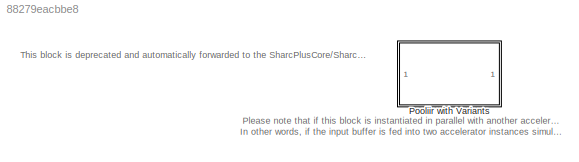
MODEL slx_88279eacbbe8
KIND library
CONFIG AbsTol = auto
CONFIG EnableMultiTasking = off
CONFIG FixedStep = auto
CONFIG MaxStep = auto
CONFIG MinStep = auto
CONFIG RelTol = 1e-3
CONFIG SampleTimeConstraint = Unconstrained
CONFIG SolverName = VariableStepAuto
CONFIG StartTime = 0.0
CONFIG StopTime = 10.0
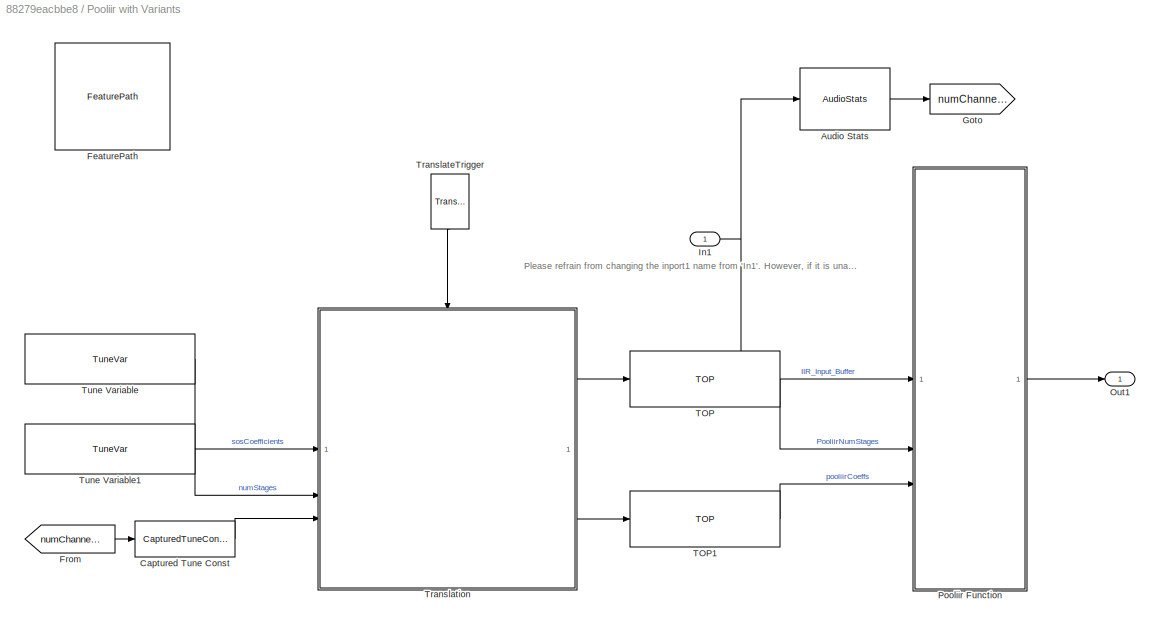
BLOCK [SubSystem] Pooliir with Variants
  Commented = on
BLOCK [Reference] Pooliir with Variants/Audio Stats  REF=AudioStats/AudioStats
  SourceBlock = AudioStats/AudioStats
  SourceProductName = Bose Talaria
  SourceType = Talaria Audio Statistics
BLOCK [Reference] Pooliir with Variants/Captured Tune Const  REF=TuneVar/CapturedTuneConst
  SourceBlock = TuneVar/CapturedTuneConst
  SourceProductName = Bose Talaria
  SourceType = Talaria Captured Constant
BLOCK [Reference] Pooliir with Variants/FeaturePath  REF=FeaturePath/FeaturePath
  SourceBlock = FeaturePath/FeaturePath
  SourceProductName = Bose Talaria
  SourceType = Talaria Feature Path
BLOCK [From] Pooliir with Variants/From
  GotoTag = numChannels
BLOCK [Goto] Pooliir with Variants/Goto
  GotoTag = numChannels
BLOCK [Inport] Pooliir with Variants/In1
BLOCK [Outport] Pooliir with Variants/Out1
  VectorParamsAs1DForOutWhenUnconnected = off
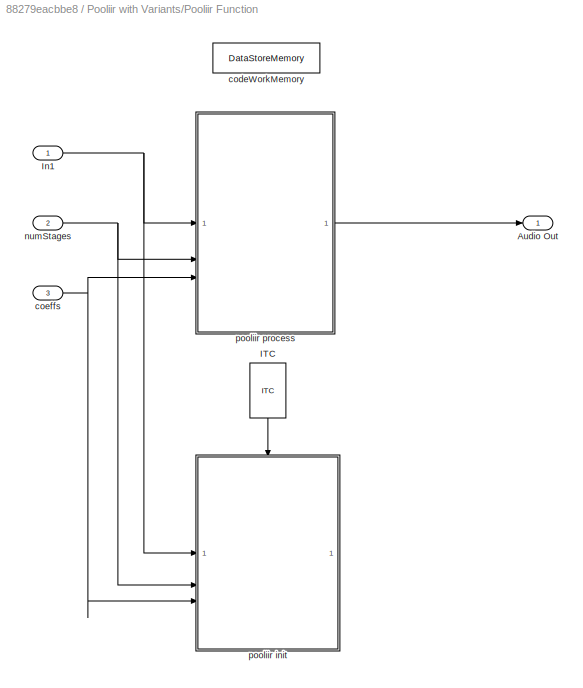
BLOCK [SubSystem] Pooliir with Variants/Pooliir Function
BLOCK [Outport] Pooliir with Variants/Pooliir Function/Audio Out
  VectorParamsAs1DForOutWhenUnconnected = off
BLOCK [Reference] Pooliir with Variants/Pooliir Function/ITC  REF=ITC/ITC
  NameLocation = left
  SourceBlock = ITC/ITC
  SourceProductName = Bose Talaria
  SourceType = Talaria Initialization Trigger Control
BLOCK [Inport] Pooliir with Variants/Pooliir Function/In1
BLOCK [DataStoreMemory] Pooliir with Variants/Pooliir Function/codeWorkMemory
  DataStoreName = codeWorkMemory
  EmbeddedSignalClassName = Blocklib.Signal
  InitialValue = zeros(1,codeWorkMemorySize)
  OutDataTypeStr = single
  ShowAdditionalParam = off
  SignalType = real
  WriteAfterWriteMsg = warning
BLOCK [Inport] Pooliir with Variants/Pooliir Function/coeffs
  Port = 3
BLOCK [Inport] Pooliir with Variants/Pooliir Function/numStages
  Port = 2
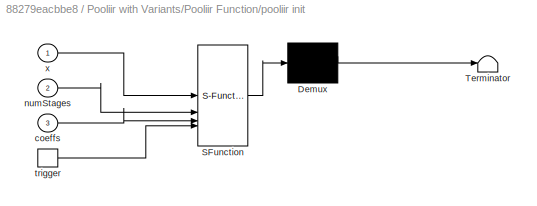
BLOCK [SubSystem] Pooliir with Variants/Pooliir Function/pooliir init
  ErrorFcn = Stateflow.Translate.translate
  PermitHierarchicalResolution = ExplicitOnly
  RTWFcnName = foo
  RTWFcnNameOpts = User specified
  SFBlockType = MATLAB Function
  TreatAsAtomicUnit = on
BLOCK [Demux] Pooliir with Variants/Pooliir Function/pooliir init/ Demux 
  Outputs = 1
BLOCK [S-Function] Pooliir with Variants/Pooliir Function/pooliir init/ SFunction 
  EnableBusSupport = off
  FunctionName = sf_sfun
  Parameters = variantSelect
  PortCounts = [4 1]
  SFcnIsStateOwnerBlock = off
  SFunctionDeploymentMode = off
  Tag = Stateflow S-Function 1
BLOCK [Terminator] Pooliir with Variants/Pooliir Function/pooliir init/ Terminator 
BLOCK [Inport] Pooliir with Variants/Pooliir Function/pooliir init/coeffs
  Port = 3
BLOCK [Inport] Pooliir with Variants/Pooliir Function/pooliir init/numStages
  Port = 2
BLOCK [TriggerPort] Pooliir with Variants/Pooliir Function/pooliir init/trigger
  ShowOutputPort = on
  StatesWhenEnabling = held
  TriggerType = function-call
  VariantControl = (inherit)
BLOCK [Inport] Pooliir with Variants/Pooliir Function/pooliir init/x
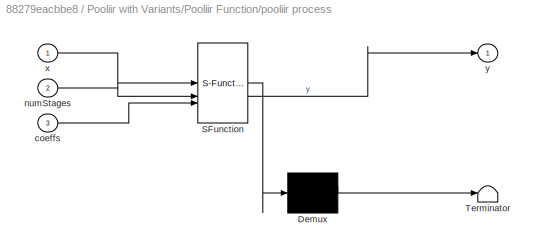
BLOCK [SubSystem] Pooliir with Variants/Pooliir Function/pooliir process
  ErrorFcn = Stateflow.Translate.translate
  PermitHierarchicalResolution = ExplicitOnly
  SFBlockType = MATLAB Function
  TreatAsAtomicUnit = on
BLOCK [Demux] Pooliir with Variants/Pooliir Function/pooliir process/ Demux 
  Outputs = 1
BLOCK [S-Function] Pooliir with Variants/Pooliir Function/pooliir process/ SFunction 
  EnableBusSupport = off
  FunctionName = sf_sfun
  Parameters = variantSelect
  PortCounts = [3 2]
  SFcnIsStateOwnerBlock = off
  SFunctionDeploymentMode = off
  Tag = Stateflow S-Function 2
BLOCK [Terminator] Pooliir with Variants/Pooliir Function/pooliir process/ Terminator 
BLOCK [Inport] Pooliir with Variants/Pooliir Function/pooliir process/coeffs
  Port = 3
BLOCK [Inport] Pooliir with Variants/Pooliir Function/pooliir process/numStages
  Port = 2
BLOCK [Inport] Pooliir with Variants/Pooliir Function/pooliir process/x
BLOCK [Outport] Pooliir with Variants/Pooliir Function/pooliir process/y
  VectorParamsAs1DForOutWhenUnconnected = off
BLOCK [Reference] Pooliir with Variants/TOP  REF=TOP/TOP
  SourceBlock = TOP/TOP
  SourceProductName = Bose Talaria
  SourceType = Talaria Target Overlay Parameter
BLOCK [Reference] Pooliir with Variants/TOP1  REF=TOP/TOP
  SourceBlock = TOP/TOP
  SourceProductName = Bose Talaria
  SourceType = Talaria Target Overlay Parameter
BLOCK [Reference] Pooliir with Variants/TranslateTrigger  REF=TuneVar/TranslateTrigger
  NameLocation = left
  SourceBlock = TuneVar/TranslateTrigger
  SourceProductName = Bose Talaria
  SourceType = Talaria Translate Trigger
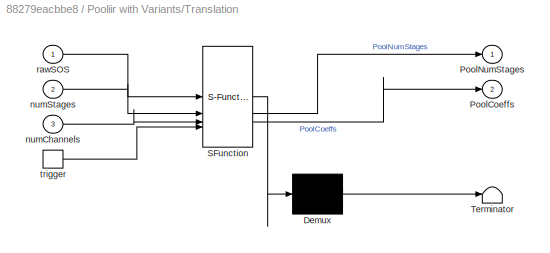
BLOCK [SubSystem] Pooliir with Variants/Translation
  ErrorFcn = Stateflow.Translate.translate
  PermitHierarchicalResolution = ExplicitOnly
  SFBlockType = MATLAB Function
  TreatAsAtomicUnit = on
BLOCK [Demux] Pooliir with Variants/Translation/ Demux 
  Outputs = 1
BLOCK [S-Function] Pooliir with Variants/Translation/ SFunction 
  EnableBusSupport = off
  FunctionName = sf_sfun
  Parameters = maxNumStages,variantSelect
  PortCounts = [4 3]
  SFcnIsStateOwnerBlock = off
  SFunctionDeploymentMode = off
  Tag = Stateflow S-Function 4
BLOCK [Terminator] Pooliir with Variants/Translation/ Terminator 
BLOCK [Outport] Pooliir with Variants/Translation/PoolCoeffs
  Port = 2
  VectorParamsAs1DForOutWhenUnconnected = off
BLOCK [Outport] Pooliir with Variants/Translation/PoolNumStages
  VectorParamsAs1DForOutWhenUnconnected = off
BLOCK [Inport] Pooliir with Variants/Translation/numChannels
  Port = 3
BLOCK [Inport] Pooliir with Variants/Translation/numStages
  Port = 2
BLOCK [Inport] Pooliir with Variants/Translation/rawSOS
BLOCK [TriggerPort] Pooliir with Variants/Translation/trigger
  ShowOutputPort = on
  StatesWhenEnabling = held
  TriggerType = function-call
  VariantControl = (inherit)
BLOCK [Reference] Pooliir with Variants/Tune Variable  REF=TuneVar/TuneVar
  SourceBlock = TuneVar/TuneVar
  SourceProductName = Bose Talaria
  SourceType = Talaria Tune Variable
BLOCK [Reference] Pooliir with Variants/Tune Variable1  REF=TuneVar/TuneVar
  SourceBlock = TuneVar/TuneVar
  SourceProductName = Bose Talaria
  SourceType = Talaria Tune Variable
ANNOTATION (root): Please note that if this block is instantiated in parallel with another accelerator instance (FIR/IIR), it would result in redundancy. In other words, if the input buffer is fed into two accelerator instances simultaneously, it would result in the creation of a duplicate buffer to have unique input buffer for each accelerator instance.
ANNOTATION (root): This block is deprecated and automatically forwarded to the SharcPlusCore/SharcPlusAccelGul variant of PoolIir/PoolIirTunable block using 'TransformPooliirAccelToPoolIirTunableSharcPlusAccelGul' transformation function.
ANNOTATION Pooliir with Variants: Please refrain from changing the inport1 name from 'In1'. However, if it is unavoidable, please update the code at line 53 in PooliirAccelMask.m
CHART Pooliir with Variants/Pooliir Function/pooliir init states=1 transitions=1
  STATE_LABEL 'eML_blk_kernel()'
  STATE_LABEL 'SCRIPT:\nfunction pooliir_init(x, numStages, coeffs, variantSelect)\n% Process function for Pooliir\n%\n% Parameters:\n%   x:              input channels [frame size x number of inputs]\n%   numStages:      coefficient sets [total filter lengths x 1]\n%   coeffs:         array of filter lengths [number of filters x 1]\n\n% Extract configuration information from inputs\n[frame_size, num_channels] = size(x);\n...<+1667ch>'
CHART Pooliir with Variants/Pooliir Function/pooliir process states=1 transitions=1
  STATE_LABEL 'eML_blk_kernel()'
  STATE_LABEL 'SCRIPT:\nfunction y = pooliir_process(x, numStages, coeffs, variantSelect)\n% Process function for Pooliir\n%\n% Parameters:\n%   x:              input channels [frame size x number of inputs]\n%   numStages:      coefficient sets [total filter lengths x 1]\n%   coeffs:         array of filter lengths [number of filters x 1]\n\n% Extract configuration information from inputs\n[frame_size, num_channels] = si...<+1140ch>'
CHART Pooliir with Variants/Translation states=1 transitions=1
  STATE_LABEL 'eML_blk_kernel()'
  STATE_LABEL "SCRIPT:\nfunction [PoolNumStages, PoolCoeffs] = pooliirTranslation(rawSOS, numStages, numChannels, maxNumStages, variantSelect)\n% Translation from raw SOS for pool SOS\n\n% Some build time sanity size checking before calling the translation\nif numel(numStages.Value) ~= numChannels\n    error('Size of num stages has to match number of input channels')\nend\nif rawSOS.Size(2) ~= 6\n    error ('Coefficient ...<+522ch>"
CHART  states=0 transitions=0
CHART  states=0 transitions=0
CHART  states=0 transitions=0
